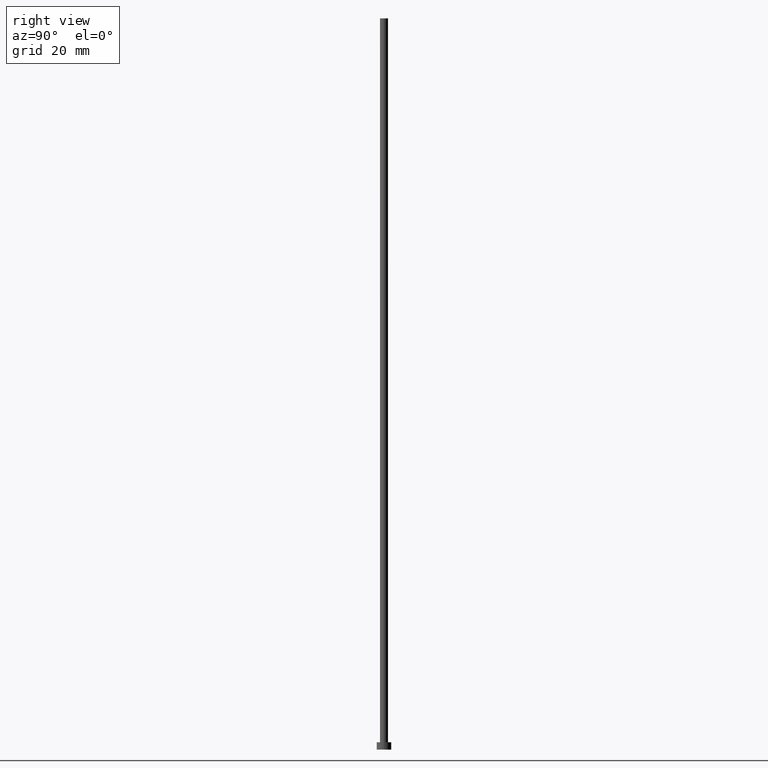
[diagram: clean part render]
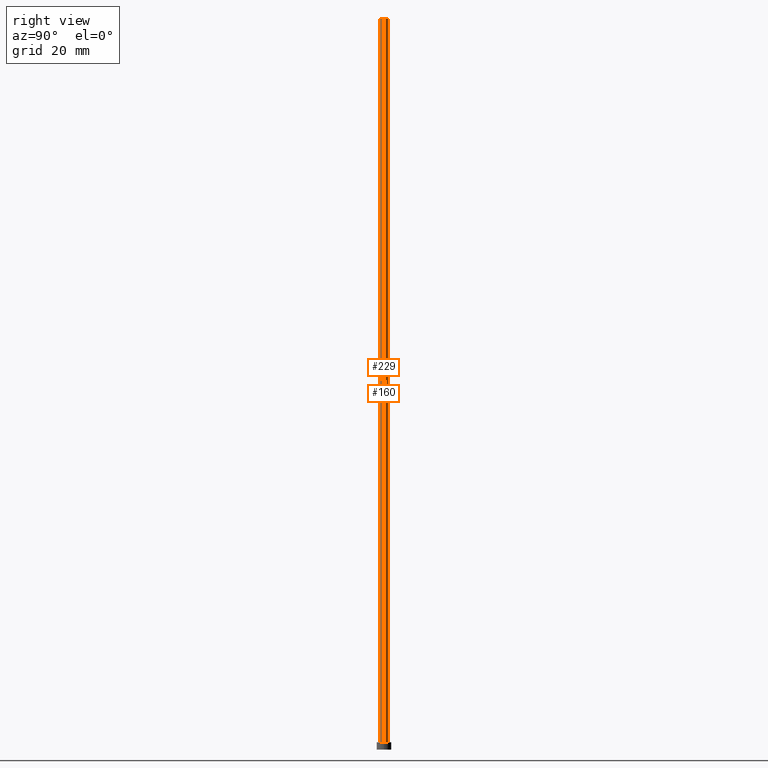
[diagram: same view with one multi-face feature highlighted, each face labeled with its STEP entity id]
A machine part, right view. The highlighted faces form ONE feature: a constant-radius fillet chain: 2 tangent blend faces with common blend radius 1.1 mm. The faces share edges in the B-rep.
Their STEP definitions:
[1] entity #160 (Cylinder):
#19 = DIRECTION ( 'NONE',  ( 0.000000000000000000, 0.000000000000000000, 1.000000000000000000 ) ) ;
#31 = EDGE_CURVE ( 'NONE', #208, #153, #156, .T. ) ;
#34 = VERTEX_POINT ( 'NONE', #236 ) ;
#57 = ORIENTED_EDGE ( 'NONE', *, *, #82, .F. ) ;
#64 = CARTESIAN_POINT ( 'NONE',  ( 1.100000000000000089, 1.347111479062088503E-16, 2.000000000000000000 ) ) ;
#67 = DIRECTION ( 'NONE',  ( 1.000000000000000000, 0.000000000000000000, 0.000000000000000000 ) ) ;
#71 = AXIS2_PLACEMENT_3D ( 'NONE', #124, #164, #167 ) ;
#75 = CARTESIAN_POINT ( 'NONE',  ( -1.100000000000000089, 0.000000000000000000, 200.0000000000000000 ) ) ;
#81 = LINE ( 'NONE', #75, #93 ) ;
#82 = EDGE_CURVE ( 'NONE', #34, #153, #81, .T. ) ;
#92 = EDGE_LOOP ( 'NONE', ( #206, #155, #169, #57 ) ) ;
#93 = VECTOR ( 'NONE', #162, 1000.000000000000000 ) ;
#105 = CARTESIAN_POINT ( 'NONE',  ( 0.000000000000000000, 0.000000000000000000, 200.0000000000000000 ) ) ;
#109 = AXIS2_PLACEMENT_3D ( 'NONE', #105, #215, #67 ) ;
#124 = CARTESIAN_POINT ( 'NONE',  ( 0.000000000000000000, 0.000000000000000000, 200.0000000000000000 ) ) ;
#127 = DIRECTION ( 'NONE',  ( -0.000000000000000000, -0.000000000000000000, -1.000000000000000000 ) ) ;
#141 = DIRECTION ( 'NONE',  ( 1.000000000000000000, 0.000000000000000000, 0.000000000000000000 ) ) ;
#150 = EDGE_CURVE ( 'NONE', #225, #208, #199, .T. ) ;
#153 = VERTEX_POINT ( 'NONE', #197 ) ;
#155 = ORIENTED_EDGE ( 'NONE', *, *, #150, .T. ) ;
#156 = CIRCLE ( 'NONE', #189, 1.100000000000000089 ) ;
#160 = ADVANCED_FACE ( 'NONE', ( #198 ), #221, .T. ) ;
#161 = CIRCLE ( 'NONE', #109, 1.100000000000000089 ) ;
#162 = DIRECTION ( 'NONE',  ( -0.000000000000000000, -0.000000000000000000, -1.000000000000000000 ) ) ;
#164 = DIRECTION ( 'NONE',  ( -0.000000000000000000, -0.000000000000000000, -1.000000000000000000 ) ) ;
#167 = DIRECTION ( 'NONE',  ( -1.000000000000000000, 0.000000000000000000, 0.000000000000000000 ) ) ;
#169 = ORIENTED_EDGE ( 'NONE', *, *, #31, .T. ) ;
#182 = EDGE_CURVE ( 'NONE', #225, #34, #161, .T. ) ;
#185 = CARTESIAN_POINT ( 'NONE',  ( 1.100000000000000089, 1.347111479062088503E-16, 200.0000000000000000 ) ) ;
#189 = AXIS2_PLACEMENT_3D ( 'NONE', #254, #19, #141 ) ;
#197 = CARTESIAN_POINT ( 'NONE',  ( -1.100000000000000089, 0.000000000000000000, 2.000000000000000000 ) ) ;
#198 = FACE_OUTER_BOUND ( 'NONE', #92, .T. ) ;
#199 = LINE ( 'NONE', #185, #218 ) ;
#206 = ORIENTED_EDGE ( 'NONE', *, *, #182, .F. ) ;
#208 = VERTEX_POINT ( 'NONE', #64 ) ;
#215 = DIRECTION ( 'NONE',  ( 0.000000000000000000, 0.000000000000000000, 1.000000000000000000 ) ) ;
#218 = VECTOR ( 'NONE', #127, 1000.000000000000000 ) ;
#221 = CYLINDRICAL_SURFACE ( 'NONE', #71, 1.100000000000000089 ) ;
#225 = VERTEX_POINT ( 'NONE', #239 ) ;
#236 = CARTESIAN_POINT ( 'NONE',  ( -1.100000000000000089, 0.000000000000000000, 200.0000000000000000 ) ) ;
#239 = CARTESIAN_POINT ( 'NONE',  ( 1.100000000000000089, 1.347111479062088503E-16, 200.0000000000000000 ) ) ;
#254 = CARTESIAN_POINT ( 'NONE',  ( 0.000000000000000000, 0.000000000000000000, 2.000000000000000000 ) ) ;
[2] entity #229 (Cylinder):
#1 = DIRECTION ( 'NONE',  ( 1.000000000000000000, 0.000000000000000000, 0.000000000000000000 ) ) ;
#4 = DIRECTION ( 'NONE',  ( -1.000000000000000000, 0.000000000000000000, 0.000000000000000000 ) ) ;
#20 = EDGE_CURVE ( 'NONE', #34, #225, #44, .T. ) ;
#22 = AXIS2_PLACEMENT_3D ( 'NONE', #36, #38, #1 ) ;
#34 = VERTEX_POINT ( 'NONE', #236 ) ;
#35 = EDGE_CURVE ( 'NONE', #153, #208, #192, .T. ) ;
#36 = CARTESIAN_POINT ( 'NONE',  ( 0.000000000000000000, 0.000000000000000000, 2.000000000000000000 ) ) ;
#38 = DIRECTION ( 'NONE',  ( 0.000000000000000000, 0.000000000000000000, 1.000000000000000000 ) ) ;
#40 = DIRECTION ( 'NONE',  ( 0.000000000000000000, 0.000000000000000000, 1.000000000000000000 ) ) ;
#44 = CIRCLE ( 'NONE', #145, 1.100000000000000089 ) ;
#63 = FACE_OUTER_BOUND ( 'NONE', #137, .T. ) ;
#64 = CARTESIAN_POINT ( 'NONE',  ( 1.100000000000000089, 1.347111479062088503E-16, 2.000000000000000000 ) ) ;
#75 = CARTESIAN_POINT ( 'NONE',  ( -1.100000000000000089, 0.000000000000000000, 200.0000000000000000 ) ) ;
#81 = LINE ( 'NONE', #75, #93 ) ;
#82 = EDGE_CURVE ( 'NONE', #34, #153, #81, .T. ) ;
#93 = VECTOR ( 'NONE', #162, 1000.000000000000000 ) ;
#104 = CARTESIAN_POINT ( 'NONE',  ( 0.000000000000000000, 0.000000000000000000, 200.0000000000000000 ) ) ;
#106 = CYLINDRICAL_SURFACE ( 'NONE', #210, 1.100000000000000089 ) ;
#127 = DIRECTION ( 'NONE',  ( -0.000000000000000000, -0.000000000000000000, -1.000000000000000000 ) ) ;
#135 = ORIENTED_EDGE ( 'NONE', *, *, #20, .F. ) ;
#137 = EDGE_LOOP ( 'NONE', ( #227, #135, #183, #204 ) ) ;
#145 = AXIS2_PLACEMENT_3D ( 'NONE', #195, #40, #181 ) ;
#150 = EDGE_CURVE ( 'NONE', #225, #208, #199, .T. ) ;
#153 = VERTEX_POINT ( 'NONE', #197 ) ;
#162 = DIRECTION ( 'NONE',  ( -0.000000000000000000, -0.000000000000000000, -1.000000000000000000 ) ) ;
#181 = DIRECTION ( 'NONE',  ( 1.000000000000000000, 0.000000000000000000, 0.000000000000000000 ) ) ;
#183 = ORIENTED_EDGE ( 'NONE', *, *, #82, .T. ) ;
#185 = CARTESIAN_POINT ( 'NONE',  ( 1.100000000000000089, 1.347111479062088503E-16, 200.0000000000000000 ) ) ;
#188 = DIRECTION ( 'NONE',  ( -0.000000000000000000, -0.000000000000000000, -1.000000000000000000 ) ) ;
#192 = CIRCLE ( 'NONE', #22, 1.100000000000000089 ) ;
#195 = CARTESIAN_POINT ( 'NONE',  ( 0.000000000000000000, 0.000000000000000000, 200.0000000000000000 ) ) ;
#197 = CARTESIAN_POINT ( 'NONE',  ( -1.100000000000000089, 0.000000000000000000, 2.000000000000000000 ) ) ;
#199 = LINE ( 'NONE', #185, #218 ) ;
#204 = ORIENTED_EDGE ( 'NONE', *, *, #35, .T. ) ;
#208 = VERTEX_POINT ( 'NONE', #64 ) ;
#210 = AXIS2_PLACEMENT_3D ( 'NONE', #104, #188, #4 ) ;
#218 = VECTOR ( 'NONE', #127, 1000.000000000000000 ) ;
#225 = VERTEX_POINT ( 'NONE', #239 ) ;
#227 = ORIENTED_EDGE ( 'NONE', *, *, #150, .F. ) ;
#229 = ADVANCED_FACE ( 'NONE', ( #63 ), #106, .T. ) ;
#236 = CARTESIAN_POINT ( 'NONE',  ( -1.100000000000000089, 0.000000000000000000, 200.0000000000000000 ) ) ;
#239 = CARTESIAN_POINT ( 'NONE',  ( 1.100000000000000089, 1.347111479062088503E-16, 200.0000000000000000 ) ) ;